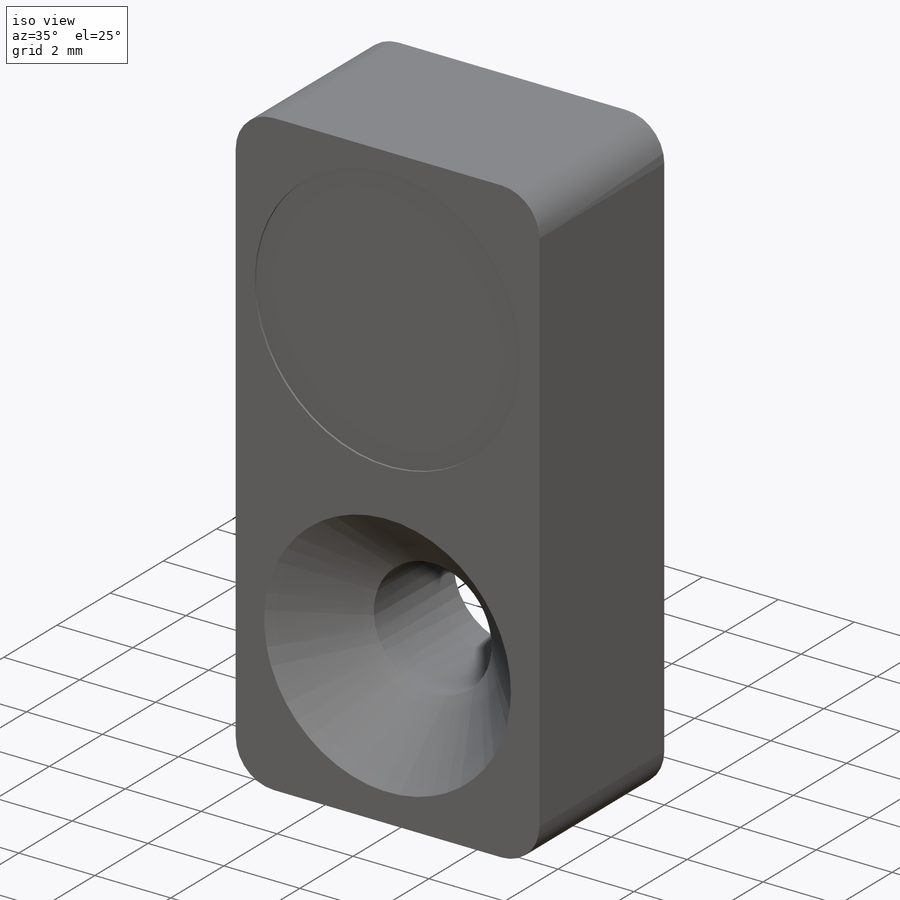
[diagram: iso view]
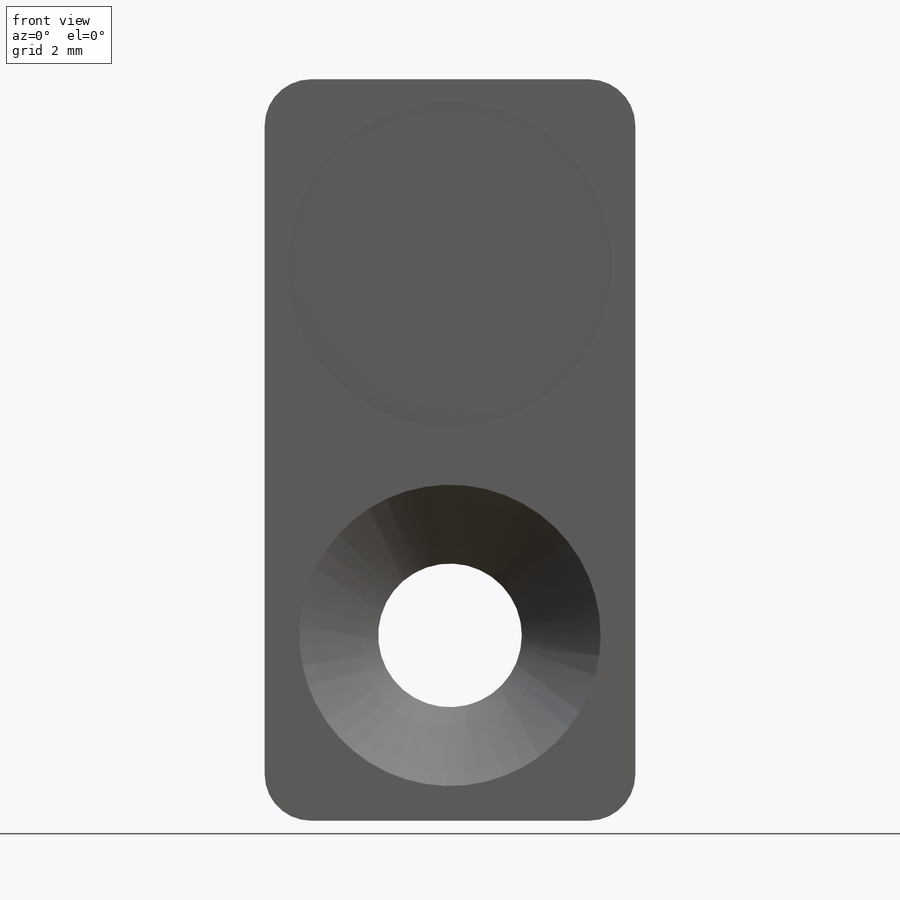
[diagram: front view]
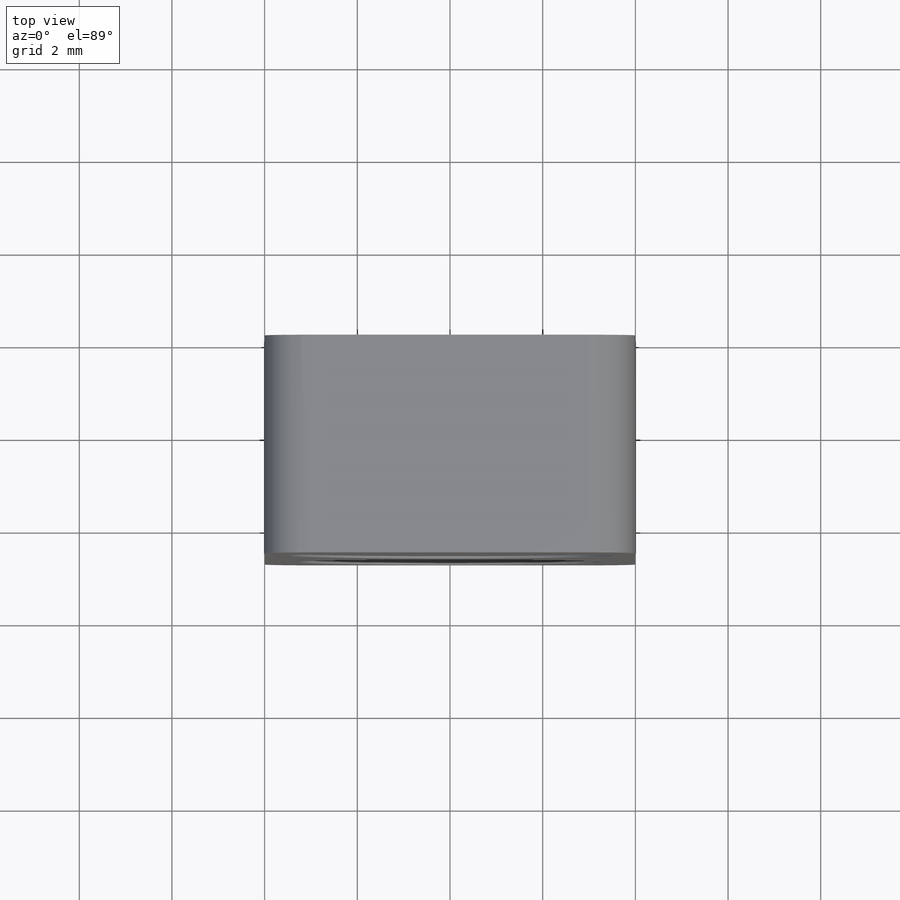
[diagram: top view]
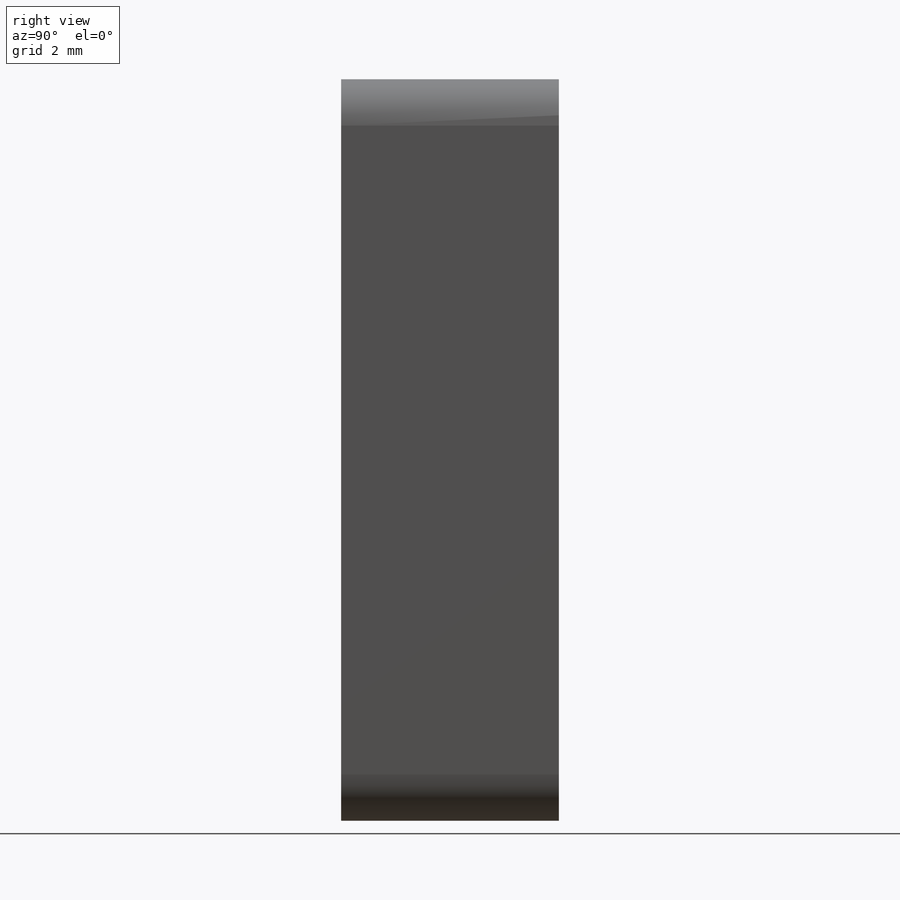
[diagram: right view]
SOLIDWORKS PART (.sldprt)
format: sldprt  version: not decoded by parser v0  size: 239,616 bytes
history: native  units: mm
features: plane x4, sketch x3, material x1, extrude x1, fillet x1, cut_extrude x1, cut_revolve x1, move_body x1 (+9 scaffold rows collapsed; 1 parser-record rows omitted)
feature tree (23):
  scaffold x9  (default folders/planes/origin — collapsed)
  material  "Material <nicht festgelegt>"
  plane  "Vorne"
  plane  "Oben"
  plane  "Rechts"
  sketch  "Skizze1"  dims[D1=8.0mm D2=16.0mm]
  extrude  "Aufsatz-Linear austragen1"  Depth=4.7mm
  fillet  "Verrundung1"  Radius=1mm
  sketch  "Skizze2"  dims[D2=7.0mm D1=4.0mm D3=4.0mm]
  cut_extrude  "Schnitt-Linear austragen1"  Depth=0.05mm
  plane  "Ebene1"  Offset=4mm
  sketch  "Skizze3"  dims[c1.D1=12.0mm c1.D2=~1.204601mm c2.D2=45.0deg c2.D3=3.25mm c2.D4=1.55mm]
  cut_revolve  "Schnitt-Rotation1"  Angle=360deg
  parser-record x1  (decoder bookkeeping rows leaked as tree rows — omitted from the tree; the rows remain in map.json)
  move_body  "Körper-Verschieben/Kopieren1"
decode coverage: 7 of 8 modeling features carry decoded parameters
note: ~ marks probable driven/reference dimensions
note: suppression state not decoded; provenance and decode notes live in map.json
